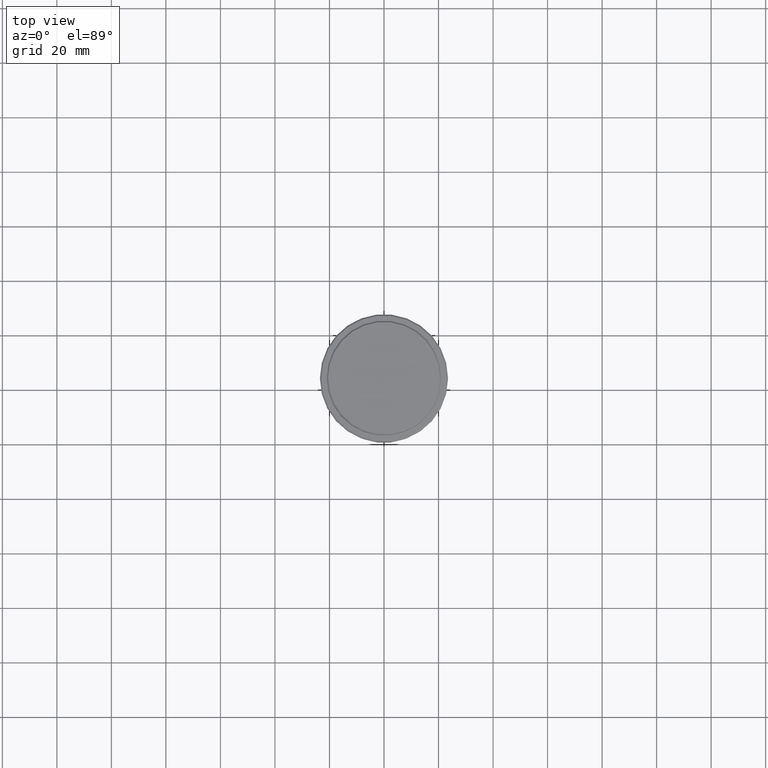
[diagram: clean part render]
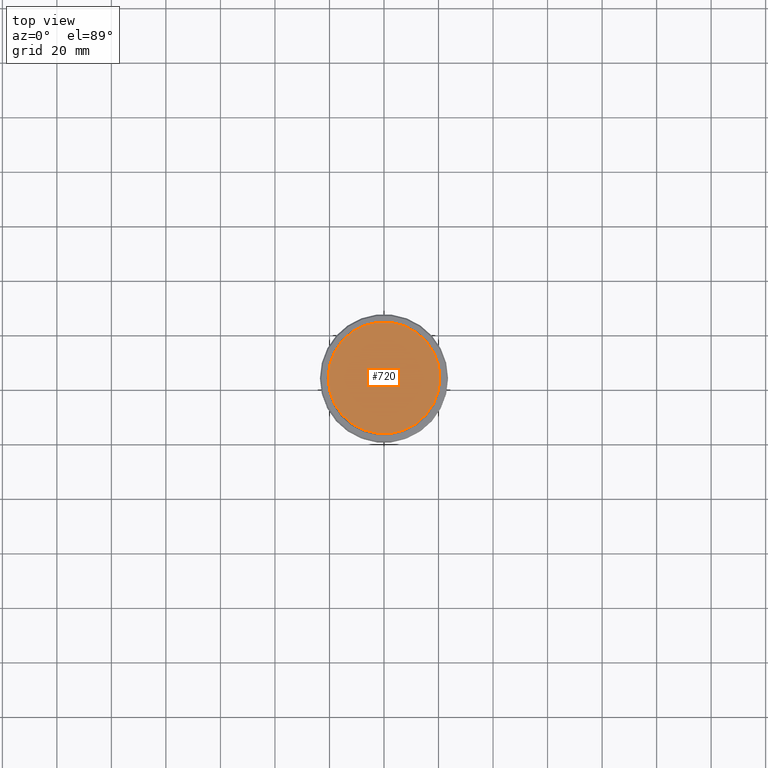
[diagram: same view with one face highlighted and labeled with its STEP entity id]
A machine part, top view. The second image highlights one B-rep face of the part: STEP entity #720.
In plain terms, the highlighted planar face has unit normal (0, -0, 1).
Its self-contained STEP definition (entity closure, byte-faithful):
#8 = FACE_OUTER_BOUND ( 'NONE', #985, .T. ) ;
#25 = VERTEX_POINT ( 'NONE', #337 ) ;
#33 = DIRECTION ( 'NONE',  ( -0.000000000000000000, -0.000000000000000000, 1.000000000000000000 ) ) ;
#85 = CIRCLE ( 'NONE', #1226, 20.50000000000007461 ) ;
#337 = CARTESIAN_POINT ( 'NONE',  ( 20.50000000000007461, 2.541142108230762213E-15, 0.000000000000000000 ) ) ;
#344 = EDGE_CURVE ( 'NONE', #25, #1182, #1086, .T. ) ;
#355 = CARTESIAN_POINT ( 'NONE',  ( 0.000000000000000000, 0.000000000000000000, 0.000000000000000000 ) ) ;
#455 = CARTESIAN_POINT ( 'NONE',  ( 0.000000000000000000, 0.000000000000000000, 0.000000000000000000 ) ) ;
#543 = DIRECTION ( 'NONE',  ( 1.000000000000000000, 0.000000000000000000, 0.000000000000000000 ) ) ;
#720 = ADVANCED_FACE ( 'NONE', ( #8 ), #1080, .T. ) ;
#766 = DIRECTION ( 'NONE',  ( 1.000000000000000000, 0.000000000000000000, 0.000000000000000000 ) ) ;
#782 = CARTESIAN_POINT ( 'NONE',  ( 0.000000000000000000, 0.000000000000000000, 0.000000000000000000 ) ) ;
#863 = ORIENTED_EDGE ( 'NONE', *, *, #344, .T. ) ;
#879 = DIRECTION ( 'NONE',  ( 0.000000000000000000, -0.000000000000000000, 1.000000000000000000 ) ) ;
#931 = AXIS2_PLACEMENT_3D ( 'NONE', #355, #33, #1187 ) ;
#982 = CARTESIAN_POINT ( 'NONE',  ( -20.50000000000007461, 0.000000000000000000, 0.000000000000000000 ) ) ;
#985 = EDGE_LOOP ( 'NONE', ( #1408, #863 ) ) ;
#995 = DIRECTION ( 'NONE',  ( -0.000000000000000000, -0.000000000000000000, 1.000000000000000000 ) ) ;
#1065 = AXIS2_PLACEMENT_3D ( 'NONE', #782, #879, #543 ) ;
#1080 = PLANE ( 'NONE',  #1065 ) ;
#1086 = CIRCLE ( 'NONE', #931, 20.50000000000007461 ) ;
#1182 = VERTEX_POINT ( 'NONE', #982 ) ;
#1187 = DIRECTION ( 'NONE',  ( 1.000000000000000000, 0.000000000000000000, 0.000000000000000000 ) ) ;
#1226 = AXIS2_PLACEMENT_3D ( 'NONE', #455, #995, #766 ) ;
#1250 = EDGE_CURVE ( 'NONE', #1182, #25, #85, .T. ) ;
#1408 = ORIENTED_EDGE ( 'NONE', *, *, #1250, .T. ) ;